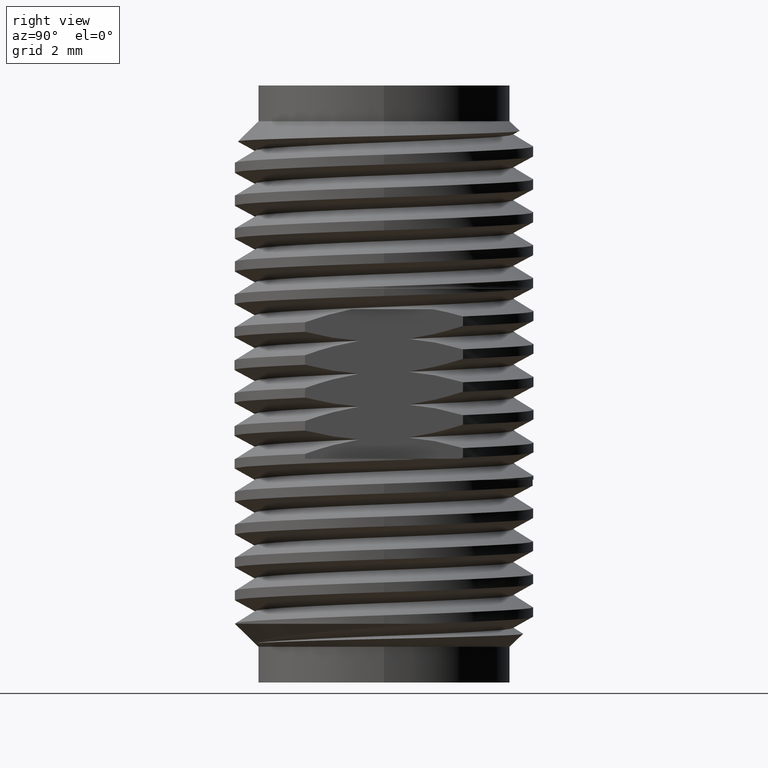
[diagram: clean part render]
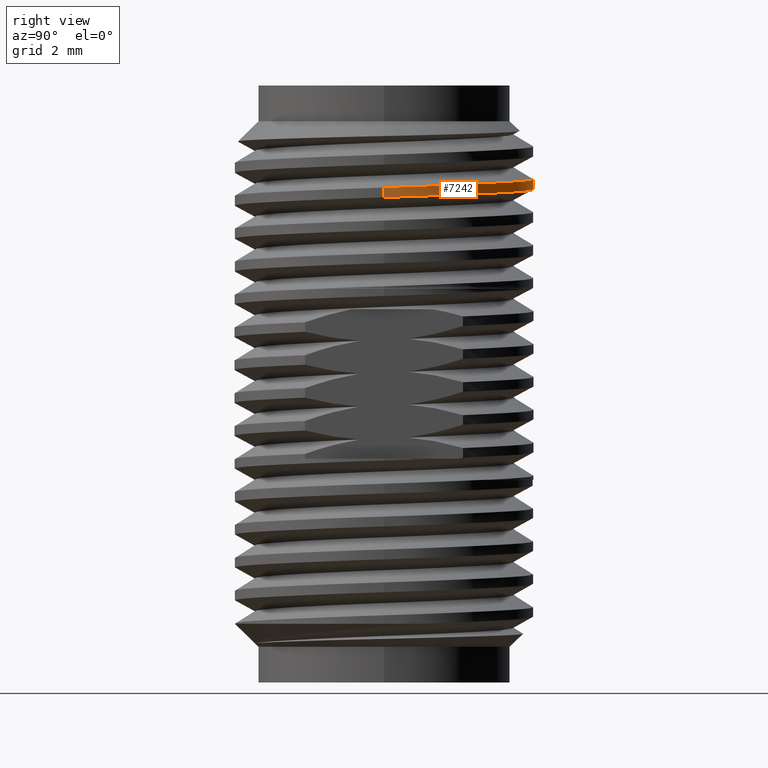
[diagram: same view with one face highlighted and labeled with its STEP entity id]
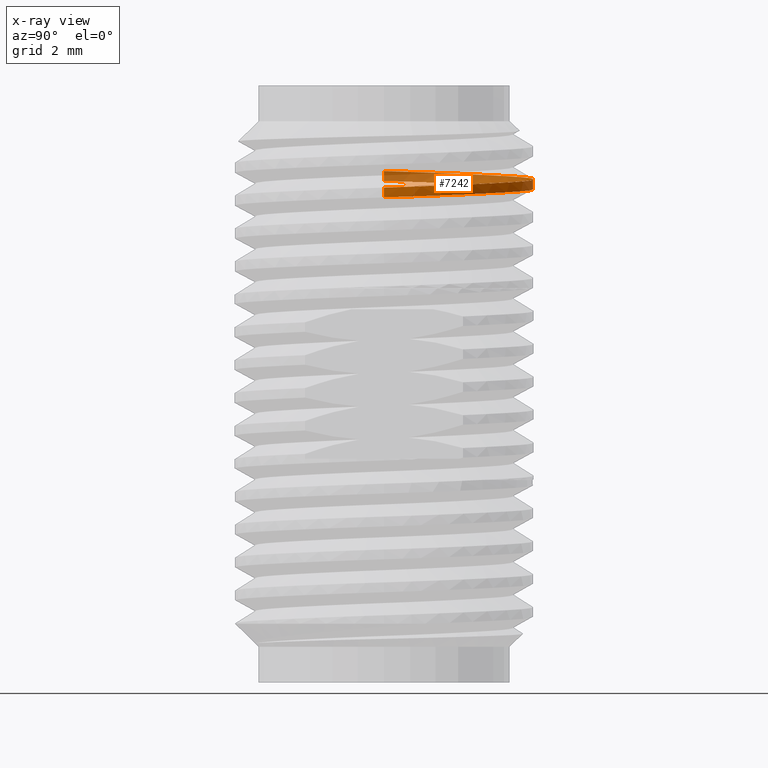
[diagram: x-ray of the same camera — body ghosted, the highlighted face saturated]
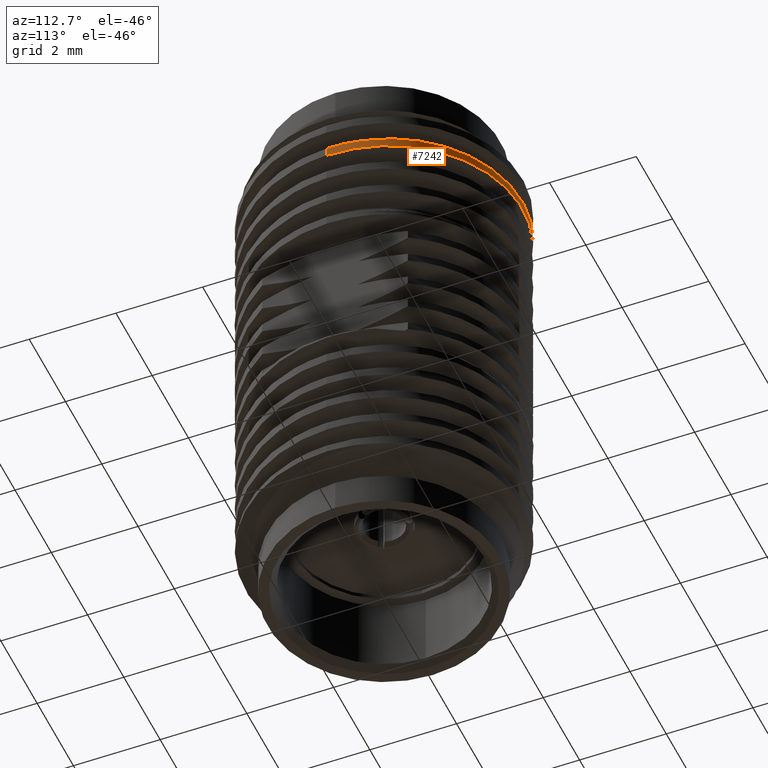
[diagram: same view with one face highlighted and labeled with its STEP entity id]
A machine part, right view. The second image highlights one B-rep face of the part: STEP entity #7242.
The next image is the same camera in x-ray: the body ghosted, the highlighted face saturated — about 46% of this face is hidden behind the body in this view.
A second angle (auxiliary view) of the same face is appended — the face is thin or edge-on in the first view.
In plain terms, the highlighted cylindrical surface (partial cylindrical patch) has radius 3.175 mm, axis along (-0, -0, 1).
Its self-contained STEP definition (entity closure, byte-faithful):
#899 = VECTOR ( 'NONE', #12594, 1000.000000000000000 ) ;
#1014 = CARTESIAN_POINT ( 'NONE',  ( -3.174999816877838400, 1.833087421853912800, 4.470148322758572800 ) ) ;
#1343 = CARTESIAN_POINT ( 'NONE',  ( -1.587499725316774000, 2.749630815604009000, 4.203056821769072500 ) ) ;
#1560 = VERTEX_POINT ( 'NONE', #9788 ) ;
#2027 = EDGE_CURVE ( 'NONE', #10831, #9738, #4774, .T. ) ;
#2193 = CARTESIAN_POINT ( 'NONE',  ( 3.175000183122129300, 1.833086787500193000, 4.236814989425239400 ) ) ;
#2330 = CARTESIAN_POINT ( 'NONE',  ( -1.587499725316773700, 2.749630815604008600, 4.411814989425238300 ) ) ;
#2393 = CARTESIAN_POINT ( 'NONE',  ( 3.175000183122129300, 1.833086787500192400, 4.028056821769071800 ) ) ;
#2733 = AXIS2_PLACEMENT_3D ( 'NONE', #3621, #7843, #12362 ) ;
#2891 = DIRECTION ( 'NONE',  ( -0.0000000000000000000, -0.0000000000000000000, 1.000000000000000000 ) ) ;
#3599 = CYLINDRICAL_SURFACE ( 'NONE', #2733, 3.174999999999999800 ) ;
#3621 = CARTESIAN_POINT ( 'NONE',  ( 0.0000000000000000000, 0.0000000000000000000, 1.550000000000000300 ) ) ;
#4774 = LINE ( 'NONE', #9354, #9522 ) ;
#5499 = CARTESIAN_POINT ( 'NONE',  ( 3.662442904505126600E-007, 3.666174209354104500, 4.144723488435737100 ) ) ;
#5774 = ORIENTED_EDGE ( 'NONE', *, *, #2027, .T. ) ;
#6181 = CARTESIAN_POINT ( 'NONE',  ( 3.174999999999999800, 0.0000000000000000000, 1.550000000000000300 ) ) ;
#6407 = EDGE_CURVE ( 'NONE', #9738, #10798, #12032, .T. ) ;
#6625 = CARTESIAN_POINT ( 'NONE',  ( 1.587500274683210100, 2.749630498427148700, 4.086390155102404400 ) ) ;
#6802 =( BOUNDED_CURVE ( )  B_SPLINE_CURVE ( 2, ( #10957, #2393, #6625, #5499, #1343, #13221, #7669 ),
 .UNSPECIFIED., .F., .F. ) 
 B_SPLINE_CURVE_WITH_KNOTS ( ( 3, 2, 2, 3 ),
 ( 0.8000000008324852400, 0.8083333333333333500, 0.8166666666666666500, 0.8250000008324851500 ),
 .UNSPECIFIED. ) 
 CURVE ( )  GEOMETRIC_REPRESENTATION_ITEM ( )  RATIONAL_B_SPLINE_CURVE ( ( 1.000000000000000000, 0.8660254037844388200, 1.000000000000000000, 0.8660254037844388200, 1.000000000000000000, 0.8660254037844388200, 1.000000000000000000 ) ) 
 REPRESENTATION_ITEM ( '' )  );
#7242 = ADVANCED_FACE ( 'NONE', ( #7845 ), #3599, .T. ) ;
#7669 = CARTESIAN_POINT ( 'NONE',  ( -3.174999999999999800, -2.640639940355473600E-015, 4.319723498529085300 ) ) ;
#7744 = CARTESIAN_POINT ( 'NONE',  ( 1.587500274683210100, 2.749630498427148700, 4.295148322758572100 ) ) ;
#7843 = DIRECTION ( 'NONE',  ( -0.0000000000000000000, -0.0000000000000000000, 1.000000000000000000 ) ) ;
#7845 = FACE_OUTER_BOUND ( 'NONE', #9293, .T. ) ;
#8359 = CARTESIAN_POINT ( 'NONE',  ( -3.174999999999999800, -2.640639940355473600E-015, 4.319723498529085300 ) ) ;
#8563 = CARTESIAN_POINT ( 'NONE',  ( -3.174999999999999400, -2.640644231355016000E-015, 4.528481666185250300 ) ) ;
#8658 = CARTESIAN_POINT ( 'NONE',  ( 3.174999999999999400, 3.029469691077823400E-015, 4.178481666185253300 ) ) ;
#9067 = EDGE_CURVE ( 'NONE', #1560, #10831, #6802, .T. ) ;
#9293 = EDGE_LOOP ( 'NONE', ( #11619, #5774, #12809, #12836 ) ) ;
#9354 = CARTESIAN_POINT ( 'NONE',  ( -3.174999999999999800, 3.888253587292846100E-016, 1.550000000000000300 ) ) ;
#9522 = VECTOR ( 'NONE', #2891, 1000.000000000000000 ) ;
#9738 = VERTEX_POINT ( 'NONE', #9829 ) ;
#9788 = CARTESIAN_POINT ( 'NONE',  ( 3.174999999999999800, 3.029469639379033900E-015, 3.969723498529084800 ) ) ;
#9829 = CARTESIAN_POINT ( 'NONE',  ( -3.174999999999999400, -2.640644231355016000E-015, 4.528481666185250300 ) ) ;
#10780 = EDGE_CURVE ( 'NONE', #1560, #10798, #13632, .T. ) ;
#10798 = VERTEX_POINT ( 'NONE', #13631 ) ;
#10831 = VERTEX_POINT ( 'NONE', #8359 ) ;
#10957 = CARTESIAN_POINT ( 'NONE',  ( 3.174999999999999800, 3.029469639379033900E-015, 3.969723498529084800 ) ) ;
#11619 = ORIENTED_EDGE ( 'NONE', *, *, #9067, .T. ) ;
#12032 =( BOUNDED_CURVE ( )  B_SPLINE_CURVE ( 2, ( #8563, #1014, #2330, #13165, #7744, #2193, #8658 ),
 .UNSPECIFIED., .F., .F. ) 
 B_SPLINE_CURVE_WITH_KNOTS ( ( 3, 2, 2, 3 ),
 ( 0.1249999991675147900, 0.1333333333333333000, 0.1416666666666667200, 0.1499999991675148300 ),
 .UNSPECIFIED. ) 
 CURVE ( )  GEOMETRIC_REPRESENTATION_ITEM ( )  RATIONAL_B_SPLINE_CURVE ( ( 1.000000000000000000, 0.8660254037844387100, 1.000000000000000000, 0.8660254037844387100, 1.000000000000000000, 0.8660254037844387100, 1.000000000000000000 ) ) 
 REPRESENTATION_ITEM ( '' )  );
#12362 = DIRECTION ( 'NONE',  ( 1.000000000000000000, 0.0000000000000000000, 0.0000000000000000000 ) ) ;
#12594 = DIRECTION ( 'NONE',  ( -0.0000000000000000000, -0.0000000000000000000, 1.000000000000000000 ) ) ;
#12809 = ORIENTED_EDGE ( 'NONE', *, *, #6407, .T. ) ;
#12836 = ORIENTED_EDGE ( 'NONE', *, *, #10780, .F. ) ;
#13165 = CARTESIAN_POINT ( 'NONE',  ( 3.662442904505126600E-007, 3.666174209354104500, 4.353481656091905600 ) ) ;
#13221 = CARTESIAN_POINT ( 'NONE',  ( -3.174999816877837500, 1.833087421853912200, 4.261390155102403400 ) ) ;
#13631 = CARTESIAN_POINT ( 'NONE',  ( 3.174999999999999400, 3.029469691077823400E-015, 4.178481666185253300 ) ) ;
#13632 = LINE ( 'NONE', #6181, #899 ) ;